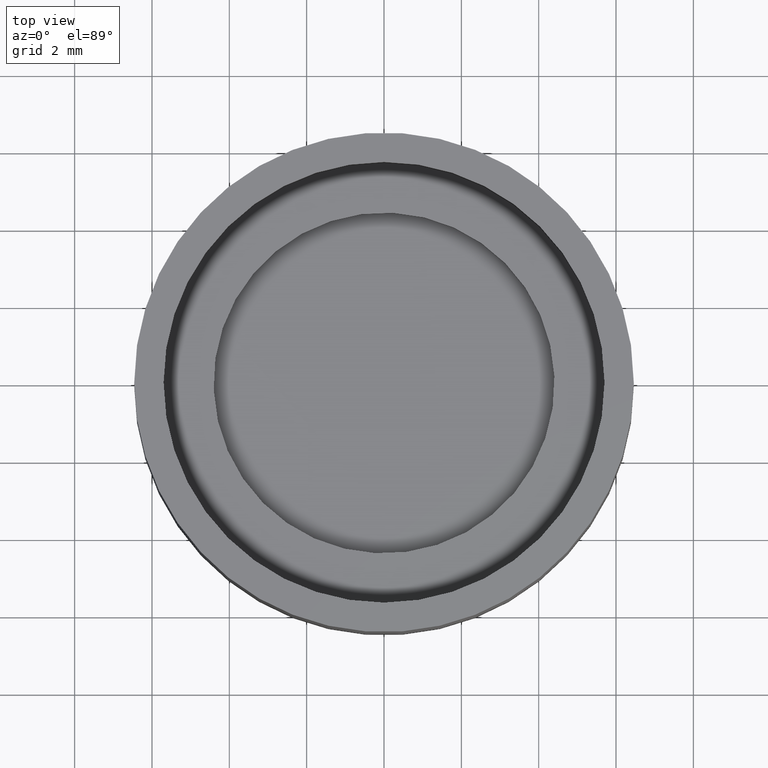
[diagram: clean part render]
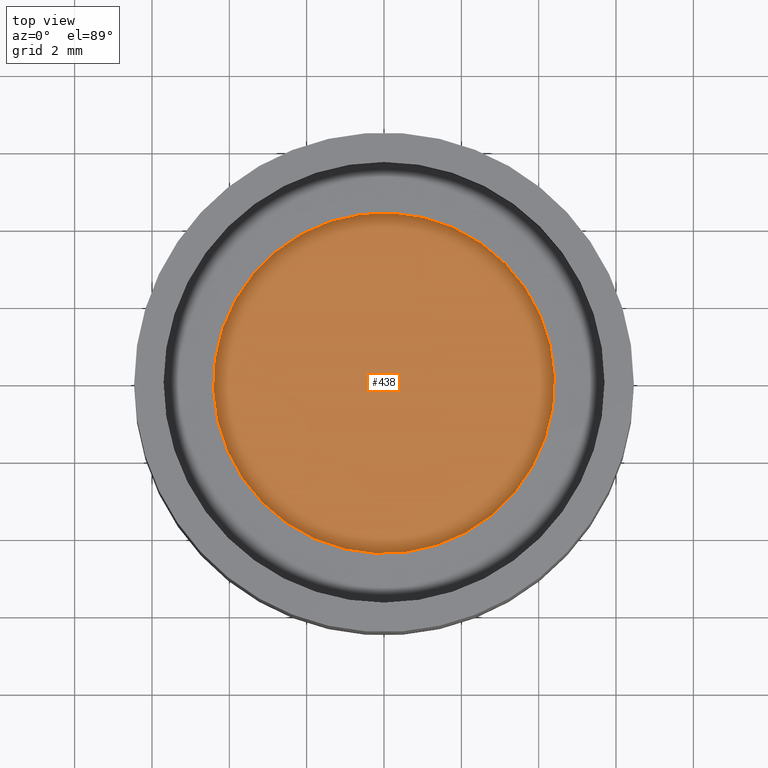
[diagram: same view with one face highlighted and labeled with its STEP entity id]
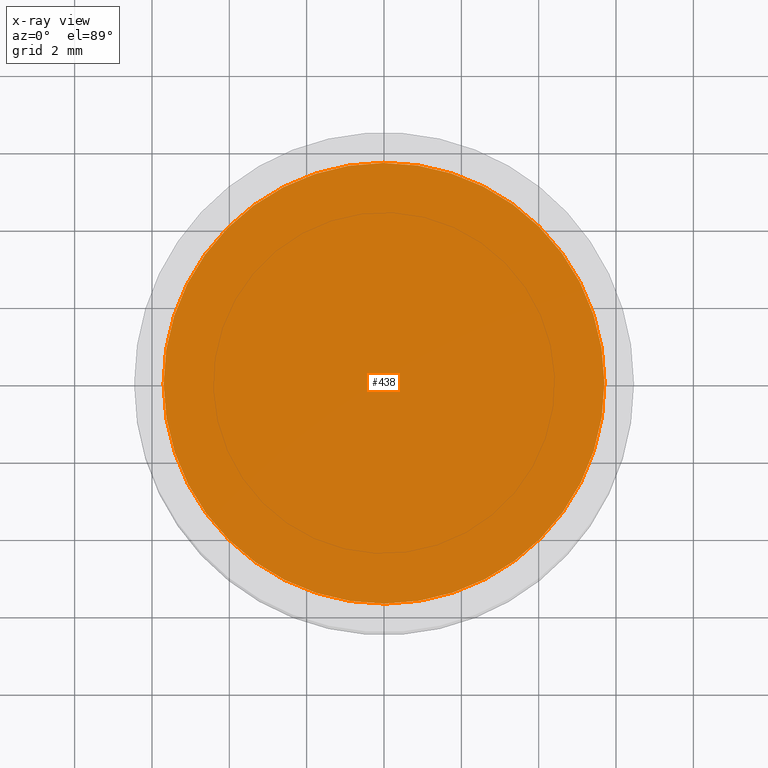
[diagram: x-ray of the same camera — body ghosted, the highlighted face saturated]
A machine part, top view. The second image highlights one B-rep face of the part: STEP entity #438.
The next image is the same camera in x-ray: the body ghosted, the highlighted face saturated — about 0% of this face is hidden behind the body in this view.
In plain terms, the highlighted planar face has unit normal (0, -0, 1).
Its self-contained STEP definition (entity closure, byte-faithful):
#9 = CARTESIAN_POINT ( 'NONE',  ( 0.0000000000000000000, 0.0000000000000000000, 2.380999999999999339 ) ) ;
#45 = CARTESIAN_POINT ( 'NONE',  ( 0.0000000000000000000, 0.0000000000000000000, 2.380999999999999339 ) ) ;
#106 = DIRECTION ( 'NONE',  ( 0.8068447097065264417, 0.5907635858942145157, 0.0000000000000000000 ) ) ;
#143 = CIRCLE ( 'NONE', #458, 5.699999999999999289 ) ;
#149 = DIRECTION ( 'NONE',  ( 0.8068447097065265528, 0.5907635858942146267, 0.0000000000000000000 ) ) ;
#202 = DIRECTION ( 'NONE',  ( 0.8068447097065265528, 0.5907635858942146267, 0.0000000000000000000 ) ) ;
#209 = CARTESIAN_POINT ( 'NONE',  ( 0.0000000000000000000, 0.0000000000000000000, 2.380999999999999339 ) ) ;
#268 = FACE_OUTER_BOUND ( 'NONE', #594, .T. ) ;
#272 = VERTEX_POINT ( 'NONE', #457 ) ;
#307 = DIRECTION ( 'NONE',  ( 0.0000000000000000000, 0.0000000000000000000, 1.000000000000000000 ) ) ;
#310 = CIRCLE ( 'NONE', #481, 5.699999999999999289 ) ;
#357 = DIRECTION ( 'NONE',  ( 0.0000000000000000000, 0.0000000000000000000, 1.000000000000000000 ) ) ;
#359 = PLANE ( 'NONE',  #501 ) ;
#411 = EDGE_CURVE ( 'NONE', #496, #272, #310, .T. ) ;
#438 = ADVANCED_FACE ( 'NONE', ( #268 ), #359, .T. ) ;
#456 = ORIENTED_EDGE ( 'NONE', *, *, #411, .T. ) ;
#457 = CARTESIAN_POINT ( 'NONE',  ( -4.599014845327200618, -3.367352439597023128, 2.380999999999999339 ) ) ;
#458 = AXIS2_PLACEMENT_3D ( 'NONE', #45, #357, #149 ) ;
#481 = AXIS2_PLACEMENT_3D ( 'NONE', #209, #307, #202 ) ;
#496 = VERTEX_POINT ( 'NONE', #563 ) ;
#501 = AXIS2_PLACEMENT_3D ( 'NONE', #9, #558, #106 ) ;
#525 = ORIENTED_EDGE ( 'NONE', *, *, #561, .T. ) ;
#558 = DIRECTION ( 'NONE',  ( 0.0000000000000000000, -0.0000000000000000000, 1.000000000000000000 ) ) ;
#561 = EDGE_CURVE ( 'NONE', #272, #496, #143, .T. ) ;
#563 = CARTESIAN_POINT ( 'NONE',  ( 4.599014845327200618, 3.367352439597023572, 2.380999999999999339 ) ) ;
#594 = EDGE_LOOP ( 'NONE', ( #525, #456 ) ) ;